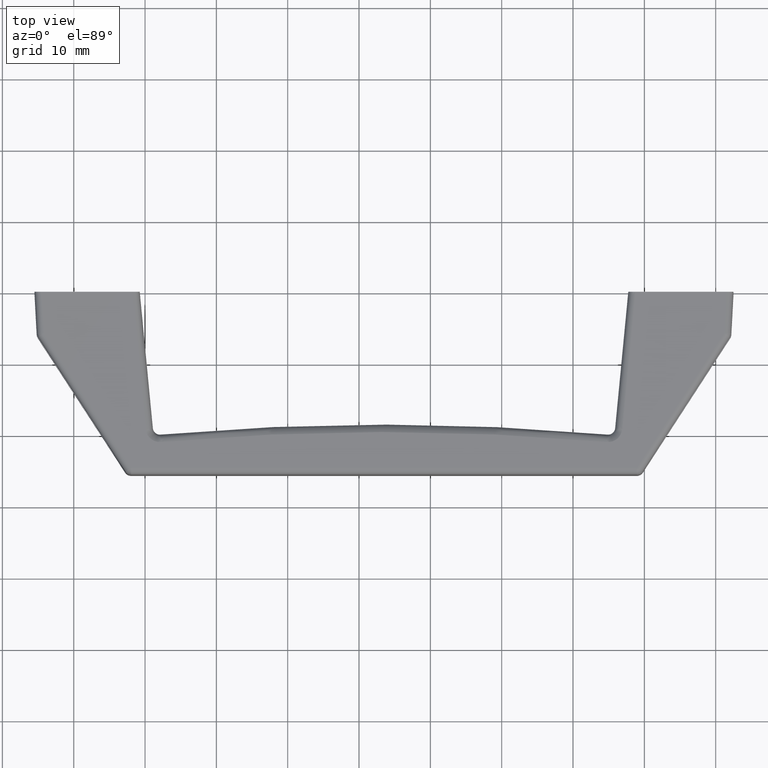
[diagram: clean part render]
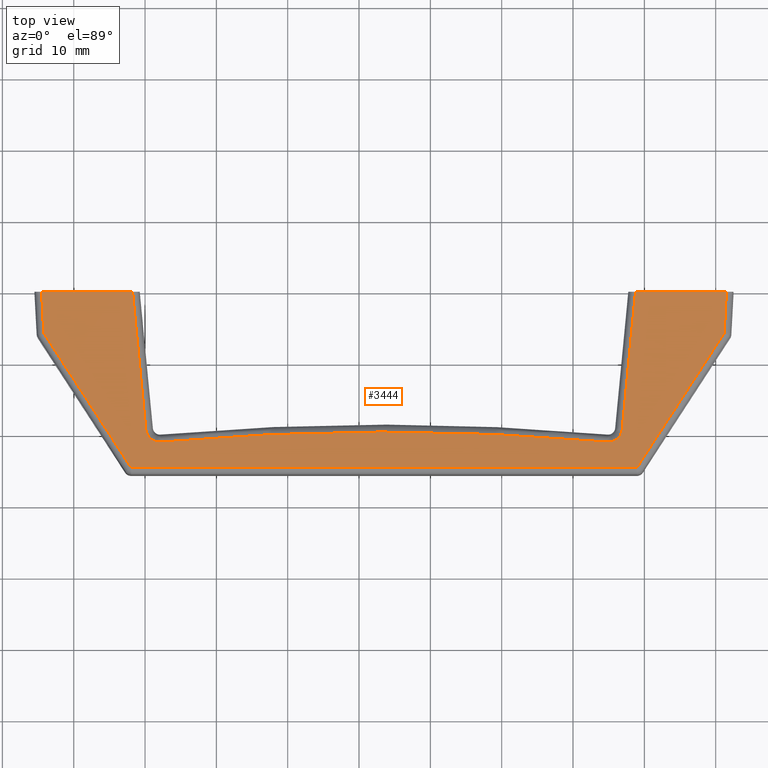
[diagram: same view with one face highlighted and labeled with its STEP entity id]
A machine part, top view. The second image highlights one B-rep face of the part: STEP entity #3444.
In plain terms, the highlighted face is a freeform B-spline surface patch.
Its self-contained STEP definition (entity closure, byte-faithful):
#1548=CARTESIAN_POINT('',(12.263955402750559,-21.052983946031951,6.896659864106650));
#1549=VERTEX_POINT('',#1548);
#1565=CARTESIAN_POINT('',(74.736044597229608,-21.052983946030150,6.896659864106741));
#1566=VERTEX_POINT('',#1565);
#1567=CARTESIAN_POINT('',(74.736044597229593,-21.052983946030061,6.896659864106635));
#1568=CARTESIAN_POINT('',(43.499999999989953,-18.246044069882725,7.043765349596545));
#1569=CARTESIAN_POINT('',(12.263955402750559,-21.052983946031951,6.896659864106650));
#1577=(BOUNDED_CURVE()B_SPLINE_CURVE(2,(#1567,#1568,#1569),.UNSPECIFIED.,.F.,.U.)CURVE()GEOMETRIC_REPRESENTATION_ITEM()QUASI_UNIFORM_CURVE()RATIONAL_B_SPLINE_CURVE((1.0,0.995986681977682,1.0))REPRESENTATION_ITEM(''));
#1578=EDGE_CURVE('',#1566,#1549,#1577,.T.);
#1651=CARTESIAN_POINT('',(76.905840114864901,-19.252702087115448,6.991008638416010));
#1652=VERTEX_POINT('',#1651);
#1684=CARTESIAN_POINT('',(76.905840114864944,-19.252702087115448,6.991008638415897));
#1685=CARTESIAN_POINT('',(76.715366121208078,-21.230850144680158,6.887338291625860));
#1686=CARTESIAN_POINT('',(74.736044597229608,-21.052983946030221,6.896659864106620));
#1694=(BOUNDED_CURVE()B_SPLINE_CURVE(2,(#1684,#1685,#1686),.UNSPECIFIED.,.F.,.U.)CURVE()GEOMETRIC_REPRESENTATION_ITEM()QUASI_UNIFORM_CURVE()RATIONAL_B_SPLINE_CURVE((1.0,0.709355897985627,1.0))REPRESENTATION_ITEM(''));
#1695=EDGE_CURVE('',#1652,#1566,#1694,.T.);
#1740=CARTESIAN_POINT('',(10.094159885134619,-19.252702087115299,6.991008638416020));
#1741=VERTEX_POINT('',#1740);
#1757=CARTESIAN_POINT('',(12.263955402750559,-21.052983946031951,6.896659864106650));
#1758=CARTESIAN_POINT('',(10.284633878789526,-21.230850144661193,6.887338291626853));
#1759=CARTESIAN_POINT('',(10.094159885134619,-19.252702087115299,6.991008638416020));
#1767=(BOUNDED_CURVE()B_SPLINE_CURVE(2,(#1757,#1758,#1759),.UNSPECIFIED.,.F.,.U.)CURVE()GEOMETRIC_REPRESENTATION_ITEM()QUASI_UNIFORM_CURVE()RATIONAL_B_SPLINE_CURVE((1.0,0.709355897988981,1.0))REPRESENTATION_ITEM(''));
#1768=EDGE_CURVE('',#1549,#1741,#1767,.T.);
#1803=CARTESIAN_POINT('',(78.759664474064095,0.0,7.999999999999799));
#1804=VERTEX_POINT('',#1803);
#1826=CARTESIAN_POINT('',(78.759664474064095,0.0,7.999999999999799));
#1827=CARTESIAN_POINT('',(76.905840114864901,-19.252702087115448,6.991008638416010));
#1828=QUASI_UNIFORM_CURVE('',1,(#1826,#1827),.UNSPECIFIED.,.F.,.U.);
#1829=EDGE_CURVE('',#1804,#1652,#1828,.T.);
#1848=CARTESIAN_POINT('',(8.240335525935510,0.0,7.999999999999799));
#1849=VERTEX_POINT('',#1848);
#1867=CARTESIAN_POINT('',(10.094159885134619,-19.252702087115299,6.991008638416020));
#1868=CARTESIAN_POINT('',(8.240335525935510,0.0,7.999999999999799));
#1869=QUASI_UNIFORM_CURVE('',1,(#1867,#1868),.UNSPECIFIED.,.F.,.U.);
#1870=EDGE_CURVE('',#1741,#1849,#1869,.T.);
#2334=CARTESIAN_POINT('',(8.042955699638132,-24.652335956243050,6.708025818393510));
#2335=VERTEX_POINT('',#2334);
#2486=CARTESIAN_POINT('',(78.957044300361403,-24.652335956243050,6.708025818393510));
#2487=VERTEX_POINT('',#2486);
#2501=CARTESIAN_POINT('',(8.042955699638132,-24.652335956243050,6.708025818393510));
#2502=CARTESIAN_POINT('',(78.957044300361403,-24.652335956243050,6.708025818393510));
#2503=QUASI_UNIFORM_CURVE('',1,(#2501,#2502),.UNSPECIFIED.,.F.,.U.);
#2504=EDGE_CURVE('',#2335,#2487,#2503,.T.);
#2529=CARTESIAN_POINT('',(-4.197186841365551,-5.804169305254960,7.695816376128570));
#2530=VERTEX_POINT('',#2529);
#2552=CARTESIAN_POINT('',(-4.197186841365551,-5.804169305254960,7.695816376128570));
#2553=CARTESIAN_POINT('',(8.042955699638132,-24.652335956243050,6.708025818393510));
#2554=QUASI_UNIFORM_CURVE('',1,(#2552,#2553),.UNSPECIFIED.,.F.,.U.);
#2555=EDGE_CURVE('',#2530,#2335,#2554,.T.);
#2890=CARTESIAN_POINT('',(91.197186841364896,-5.804169305254950,7.695816376128570));
#2891=VERTEX_POINT('',#2890);
#2905=CARTESIAN_POINT('',(78.957044300361403,-24.652335956243050,6.708025818393510));
#2906=CARTESIAN_POINT('',(91.197186841364896,-5.804169305254950,7.695816376128570));
#2907=QUASI_UNIFORM_CURVE('',1,(#2905,#2906),.UNSPECIFIED.,.F.,.U.);
#2908=EDGE_CURVE('',#2487,#2891,#2907,.T.);
#2935=CARTESIAN_POINT('',(-4.501370465219700,0.0,7.999999999999799));
#2936=VERTEX_POINT('',#2935);
#2956=CARTESIAN_POINT('',(-4.501370465219700,0.0,7.999999999999799));
#2957=CARTESIAN_POINT('',(-4.197186841365551,-5.804169305254960,7.695816376128570));
#2958=QUASI_UNIFORM_CURVE('',1,(#2956,#2957),.UNSPECIFIED.,.F.,.U.);
#2959=EDGE_CURVE('',#2936,#2530,#2958,.T.);
#3135=CARTESIAN_POINT('',(91.501370465219409,0.0,7.999999999999799));
#3136=VERTEX_POINT('',#3135);
#3152=CARTESIAN_POINT('',(91.197186841364896,-5.804169305254950,7.695816376128570));
#3153=CARTESIAN_POINT('',(91.501370465219409,0.0,7.999999999999799));
#3154=QUASI_UNIFORM_CURVE('',1,(#3152,#3153),.UNSPECIFIED.,.F.,.U.);
#3155=EDGE_CURVE('',#2891,#3136,#3154,.T.);
#3417=CARTESIAN_POINT('',(-9.296707188623198,-25.883720320894870,6.643491698398247));
#3418=CARTESIAN_POINT('',(-9.296707188623198,1.231384805469940,8.064534143097365));
#3419=CARTESIAN_POINT('',(96.296709763617073,-25.883720320894870,6.643491698398247));
#3420=CARTESIAN_POINT('',(96.296709763617073,1.231384805469940,8.064534143097365));
#3421=B_SPLINE_SURFACE_WITH_KNOTS('',1,1,((#3417,#3419),(#3418,#3420)),.UNSPECIFIED.,.F.,.F.,.U.,(2,2),(2,2),(0.0,27.152316432368188),(0.0,105.593416952240300),.UNSPECIFIED.);
#3422=ORIENTED_EDGE('',*,*,#2908,.T.);
#3423=ORIENTED_EDGE('',*,*,#3155,.T.);
#3424=CARTESIAN_POINT('',(91.501370465219409,0.0,7.999999999999799));
#3425=CARTESIAN_POINT('',(78.759664474064095,0.0,7.999999999999799));
#3426=QUASI_UNIFORM_CURVE('',1,(#3424,#3425),.UNSPECIFIED.,.F.,.U.);
#3427=EDGE_CURVE('',#3136,#1804,#3426,.T.);
#3428=ORIENTED_EDGE('',*,*,#3427,.T.);
#3429=ORIENTED_EDGE('',*,*,#1829,.T.);
#3430=ORIENTED_EDGE('',*,*,#1695,.T.);
#3431=ORIENTED_EDGE('',*,*,#1578,.T.);
#3432=ORIENTED_EDGE('',*,*,#1768,.T.);
#3433=ORIENTED_EDGE('',*,*,#1870,.T.);
#3434=CARTESIAN_POINT('',(8.240335525935510,0.0,7.999999999999799));
#3435=CARTESIAN_POINT('',(-4.501370465219700,0.0,7.999999999999799));
#3436=QUASI_UNIFORM_CURVE('',1,(#3434,#3435),.UNSPECIFIED.,.F.,.U.);
#3437=EDGE_CURVE('',#1849,#2936,#3436,.T.);
#3438=ORIENTED_EDGE('',*,*,#3437,.T.);
#3439=ORIENTED_EDGE('',*,*,#2959,.T.);
#3440=ORIENTED_EDGE('',*,*,#2555,.T.);
#3441=ORIENTED_EDGE('',*,*,#2504,.T.);
#3442=EDGE_LOOP('',(#3422,#3423,#3428,#3429,#3430,#3431,#3432,#3433,#3438,#3439,#3440,#3441));
#3443=FACE_OUTER_BOUND('',#3442,.T.);
#3444=ADVANCED_FACE('',(#3443),#3421,.F.);